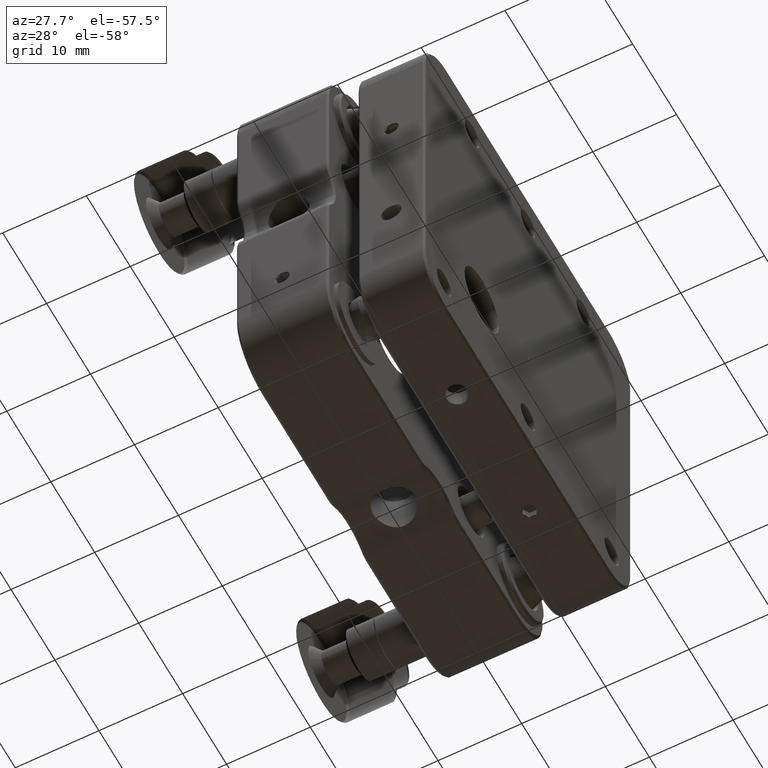
[diagram: clean part render]
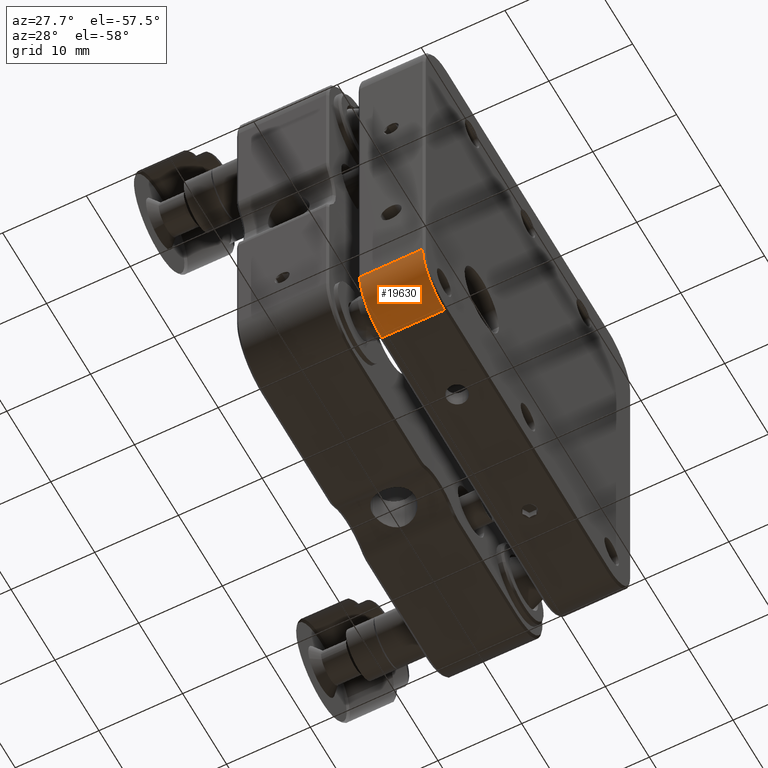
[diagram: same view with one face highlighted and labeled with its STEP entity id]
A machine part, auxiliary view. The second image highlights one B-rep face of the part: STEP entity #19630.
In plain terms, the highlighted face is a freeform B-spline surface patch.
Its self-contained STEP definition (entity closure, byte-faithful):
#748 = CARTESIAN_POINT ( 'NONE',  ( 7.994867811865270291, -13.50000000000000000, -18.50000000000000000 ) ) ;
#2186 =( BOUNDED_CURVE ( )  B_SPLINE_CURVE ( 2, ( #22794, #52053, #23427 ),
 .UNSPECIFIED., .F., .T. ) 
 B_SPLINE_CURVE_WITH_KNOTS ( ( 3, 3 ),
 ( 0.000000000000000000, 1.000000000000000000 ),
 .UNSPECIFIED. ) 
 CURVE ( )  GEOMETRIC_REPRESENTATION_ITEM ( )  RATIONAL_B_SPLINE_CURVE ( ( 0.9999999999999978906, 0.7071067811865480168, 1.000000000000002220 ) ) 
 REPRESENTATION_ITEM ( '' )  );
#5385 = CARTESIAN_POINT ( 'NONE',  ( 8.746067811865261277, -23.50000000000000000, -18.50000000000000000 ) ) ;
#5512 = CARTESIAN_POINT ( 'NONE',  ( 16.99726781186525315, -18.50000000000000000, -23.50000000000000000 ) ) ;
#5827 = CARTESIAN_POINT ( 'NONE',  ( 7.994867811865270291, -13.50000000000000000, -18.50000000000000000 ) ) ;
#10076 = VERTEX_POINT ( 'NONE', #41961 ) ;
#10367 = ORIENTED_EDGE ( 'NONE', *, *, #28457, .F. ) ;
#10904 = CARTESIAN_POINT ( 'NONE',  ( 16.99726781186525670, -13.50000000000001599, -13.49999999999998934 ) ) ;
#11187 = EDGE_CURVE ( 'NONE', #10076, #31881, #2186, .T. ) ;
#19630 = ADVANCED_FACE ( 'NONE', ( #29383 ), #53087, .T. ) ;
#20379 =( BOUNDED_CURVE ( )  B_SPLINE_CURVE ( 2, ( #20940, #40354, #59446 ),
 .UNSPECIFIED., .F., .T. ) 
 B_SPLINE_CURVE_WITH_KNOTS ( ( 3, 3 ),
 ( 0.000000000000000000, 1.000000000000000000 ),
 .UNSPECIFIED. ) 
 CURVE ( )  GEOMETRIC_REPRESENTATION_ITEM ( )  RATIONAL_B_SPLINE_CURVE ( ( 0.9999999999999976685, 0.7071067811865482389, 1.000000000000001998 ) ) 
 REPRESENTATION_ITEM ( '' )  );
#20764 = CARTESIAN_POINT ( 'NONE',  ( 7.994867811865224994, -23.49999999999995737, -23.49999999999995737 ) ) ;
#20940 = CARTESIAN_POINT ( 'NONE',  ( 8.746067811865261277, -18.50000000000000000, -23.50000000000000000 ) ) ;
#21254 = VERTEX_POINT ( 'NONE', #41299 ) ;
#22794 = CARTESIAN_POINT ( 'NONE',  ( 16.24606781186525239, -23.50000000000000000, -18.50000000000000000 ) ) ;
#23427 = CARTESIAN_POINT ( 'NONE',  ( 16.24606781186519910, -18.50000000000000000, -23.50000000000000000 ) ) ;
#25559 = CARTESIAN_POINT ( 'NONE',  ( 7.994867811865230323, -23.50000000000000000, -18.50000000000000000 ) ) ;
#28137 = CARTESIAN_POINT ( 'NONE',  ( 8.746067811865261277, -18.50000000000000000, -23.50000000000000000 ) ) ;
#28457 = EDGE_CURVE ( 'NONE', #31881, #61955, #43089, .T. ) ;
#29383 = FACE_OUTER_BOUND ( 'NONE', #37052, .T. ) ;
#31881 = VERTEX_POINT ( 'NONE', #62658 ) ;
#32246 = EDGE_CURVE ( 'NONE', #61955, #21254, #20379, .T. ) ;
#33394 = EDGE_CURVE ( 'NONE', #21254, #10076, #37478, .T. ) ;
#33405 = CARTESIAN_POINT ( 'NONE',  ( 16.24606781186525239, -23.50000000000000000, -18.50000000000000000 ) ) ;
#33846 = CARTESIAN_POINT ( 'NONE',  ( 16.99726781186529934, -13.50000000000000000, -18.50000000000000000 ) ) ;
#35098 = CARTESIAN_POINT ( 'NONE',  ( 7.994867811865224994, -23.49999999999995737, -13.49999999999998934 ) ) ;
#36977 = ORIENTED_EDGE ( 'NONE', *, *, #33394, .F. ) ;
#37052 = EDGE_LOOP ( 'NONE', ( #10367, #53889, #36977, #38492 ) ) ;
#37478 = B_SPLINE_CURVE_WITH_KNOTS ( 'NONE', 1,
 ( #5385, #33405 ),
 .UNSPECIFIED., .F., .F.,
 ( 2, 2 ),
 ( 0.000000000000000000, 1.000000000000000000 ),
 .UNSPECIFIED. ) ;
#38492 = ORIENTED_EDGE ( 'NONE', *, *, #32246, .F. ) ;
#39557 = CARTESIAN_POINT ( 'NONE',  ( 16.99726781186529934, -13.50000000000000000, -18.50000000000000000 ) ) ;
#40174 = CARTESIAN_POINT ( 'NONE',  ( 7.994867811865269402, -13.49999999999998934, -13.49999999999998934 ) ) ;
#40354 = CARTESIAN_POINT ( 'NONE',  ( 8.746067811865248842, -23.50000000000006395, -23.49999999999996092 ) ) ;
#41299 = CARTESIAN_POINT ( 'NONE',  ( 8.746067811865261277, -23.50000000000000000, -18.50000000000000000 ) ) ;
#41961 = CARTESIAN_POINT ( 'NONE',  ( 16.24606781186525239, -23.50000000000000000, -18.50000000000000000 ) ) ;
#42791 = CARTESIAN_POINT ( 'NONE',  ( 8.746067811865261277, -18.50000000000000000, -23.50000000000000000 ) ) ;
#43089 = B_SPLINE_CURVE_WITH_KNOTS ( 'NONE', 1,
 ( #52297, #28137 ),
 .UNSPECIFIED., .F., .F.,
 ( 2, 2 ),
 ( 0.000000000000000000, 1.000000000000000000 ),
 .UNSPECIFIED. ) ;
#44967 = CARTESIAN_POINT ( 'NONE',  ( 16.99726781186525315, -23.50000000000000000, -18.50000000000000000 ) ) ;
#48793 = CARTESIAN_POINT ( 'NONE',  ( 16.99726781186522828, -23.50000000000002842, -13.49999999999998934 ) ) ;
#49729 = CARTESIAN_POINT ( 'NONE',  ( 7.994867811865249863, -18.50000000000000000, -13.50000000000000000 ) ) ;
#52053 = CARTESIAN_POINT ( 'NONE',  ( 16.24606781186519910, -23.49999999999989342, -23.49999999999998579 ) ) ;
#52297 = CARTESIAN_POINT ( 'NONE',  ( 16.24606781186519910, -18.50000000000000000, -23.50000000000000000 ) ) ;
#53087 =( BOUNDED_SURFACE ( )  B_SPLINE_SURFACE ( 2, 1, ( 
 ( #748, #39557 ),
 ( #40174, #10904 ),
 ( #49729, #58961 ),
 ( #35098, #48793 ),
 ( #25559, #44967 ),
 ( #20764, #59271 ),
 ( #53235, #5512 ),
 ( #59583, #53869 ),
 ( #5827, #33846 ) ),
 .UNSPECIFIED., .T., .F., .F. ) 
 B_SPLINE_SURFACE_WITH_KNOTS ( ( 3, 2, 2, 2, 3 ),
 ( 2, 2 ),
 ( 0.000000000000000000, 1.570796326794895004, 3.141592653589795336, 4.712388980384689674, 6.283185307179590673 ),
 ( 0.000000000000000000, 9.002399999999999736 ),
 .UNSPECIFIED. ) 
 GEOMETRIC_REPRESENTATION_ITEM ( )  RATIONAL_B_SPLINE_SURFACE ( (
 ( 1.000000000000000000, 1.000000000000000000),
 ( 0.7071067811865480168, 0.7071067811865480168),
 ( 1.000000000000000000, 1.000000000000000000),
 ( 0.7071067811865480168, 0.7071067811865480168),
 ( 1.000000000000000000, 1.000000000000000000),
 ( 0.7071067811865480168, 0.7071067811865480168),
 ( 1.000000000000000000, 1.000000000000000000),
 ( 0.7071067811865480168, 0.7071067811865480168),
 ( 1.000000000000000000, 1.000000000000000000) ) ) 
 REPRESENTATION_ITEM ( '' )  SURFACE ( )  );
#53235 = CARTESIAN_POINT ( 'NONE',  ( 7.994867811865249863, -18.50000000000000000, -23.50000000000000000 ) ) ;
#53869 = CARTESIAN_POINT ( 'NONE',  ( 16.99726781186525670, -13.50000000000001599, -23.50000000000002842 ) ) ;
#53889 = ORIENTED_EDGE ( 'NONE', *, *, #11187, .F. ) ;
#58961 = CARTESIAN_POINT ( 'NONE',  ( 16.99726781186525315, -18.50000000000000000, -13.50000000000000000 ) ) ;
#59271 = CARTESIAN_POINT ( 'NONE',  ( 16.99726781186522828, -23.50000000000002842, -23.50000000000002842 ) ) ;
#59446 = CARTESIAN_POINT ( 'NONE',  ( 8.746067811865261277, -23.50000000000000000, -18.50000000000000000 ) ) ;
#59583 = CARTESIAN_POINT ( 'NONE',  ( 7.994867811865269402, -13.49999999999998934, -23.49999999999995737 ) ) ;
#61955 = VERTEX_POINT ( 'NONE', #42791 ) ;
#62658 = CARTESIAN_POINT ( 'NONE',  ( 16.24606781186519910, -18.50000000000000000, -23.50000000000000000 ) ) ;